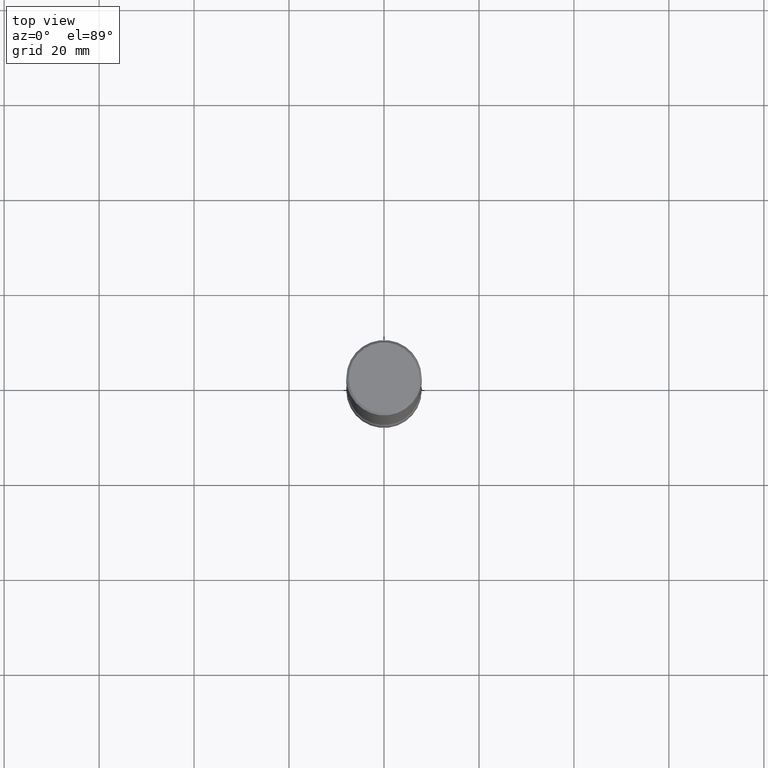
[diagram: clean part render]
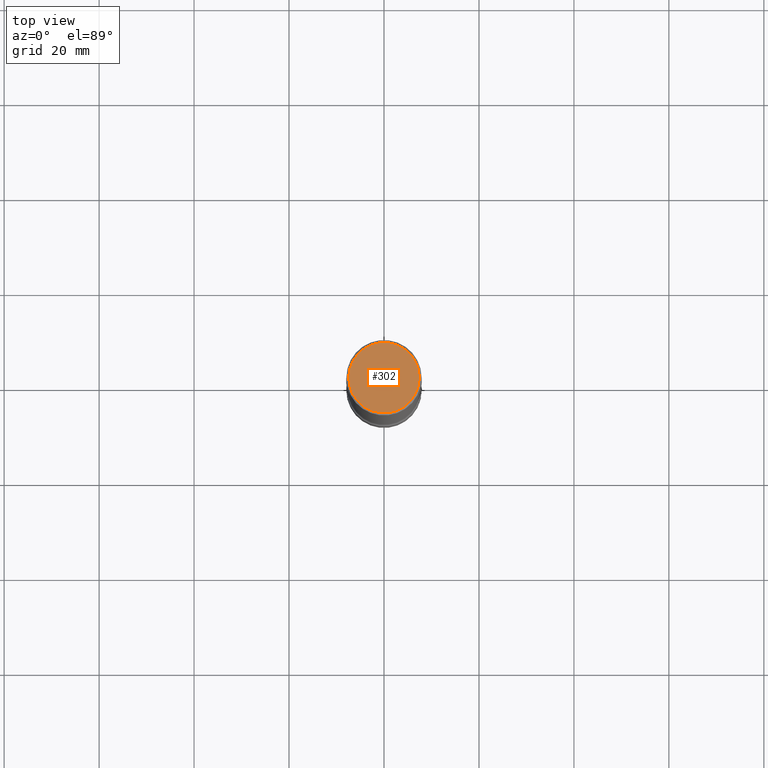
[diagram: same view with one face highlighted and labeled with its STEP entity id]
A machine part, top view. The second image highlights one B-rep face of the part: STEP entity #302.
In plain terms, the highlighted planar face has unit normal (0, -0, -1).
Its self-contained STEP definition (entity closure, byte-faithful):
#29 = DIRECTION ( 'NONE',  ( -1.000000000000000000, 6.982962677686265922E-15, -4.876176775795935793E-29 ) ) ;
#103 = DIRECTION ( 'NONE',  ( -2.445468806185136597E-29, 3.491481338843145583E-15, 1.000000000000000000 ) ) ;
#150 = DIRECTION ( 'NONE',  ( 1.000000000000000000, -6.982962677686266711E-15, 4.876067333457696203E-29 ) ) ;
#166 = CARTESIAN_POINT ( 'NONE',  ( 2.042516583223230173E-15, 0.2924999999999995937, -1.016989779121518407E-15 ) ) ;
#187 = AXIS2_PLACEMENT_3D ( 'NONE', #643, #521, #150 ) ;
#302 = ADVANCED_FACE ( 'NONE', ( #721 ), #475, .F. ) ;
#334 = CARTESIAN_POINT ( 'NONE',  ( 0.2924999999999995937, -2.110215457714317564E-15, 8.537024980215342529E-18 ) ) ;
#347 = EDGE_LOOP ( 'NONE', ( #630, #530 ) ) ;
#373 = CARTESIAN_POINT ( 'NONE',  ( -0.2924999999999995937, 2.077431396611661822E-15, 8.537024980186416602E-18 ) ) ;
#399 = VERTEX_POINT ( 'NONE', #373 ) ;
#475 = PLANE ( 'NONE',  #798 ) ;
#512 = CIRCLE ( 'NONE', #187, 0.2924999999999995937 ) ;
#521 = DIRECTION ( 'NONE',  ( -2.445468806185136597E-29, 3.491481338843145583E-15, 1.000000000000000000 ) ) ;
#530 = ORIENTED_EDGE ( 'NONE', *, *, #742, .T. ) ;
#598 = VERTEX_POINT ( 'NONE', #334 ) ;
#603 = EDGE_CURVE ( 'NONE', #399, #598, #512, .T. ) ;
#630 = ORIENTED_EDGE ( 'NONE', *, *, #603, .T. ) ;
#643 = CARTESIAN_POINT ( 'NONE',  ( -2.087702828670439639E-46, 2.980686340760894400E-32, 8.537024980200822558E-18 ) ) ;
#657 = DIRECTION ( 'NONE',  ( 2.438088387897960049E-29, -3.491481338843145188E-15, -1.000000000000000000 ) ) ;
#660 = DIRECTION ( 'NONE',  ( 1.000000000000000000, -6.982962677686266711E-15, 4.876067333457696203E-29 ) ) ;
#663 = CIRCLE ( 'NONE', #799, 0.2924999999999995937 ) ;
#710 = CARTESIAN_POINT ( 'NONE',  ( -2.087702828670439639E-46, 2.980686340760894400E-32, 8.537024980200822558E-18 ) ) ;
#721 = FACE_OUTER_BOUND ( 'NONE', #347, .T. ) ;
#742 = EDGE_CURVE ( 'NONE', #598, #399, #663, .T. ) ;
#798 = AXIS2_PLACEMENT_3D ( 'NONE', #166, #657, #29 ) ;
#799 = AXIS2_PLACEMENT_3D ( 'NONE', #710, #103, #660 ) ;